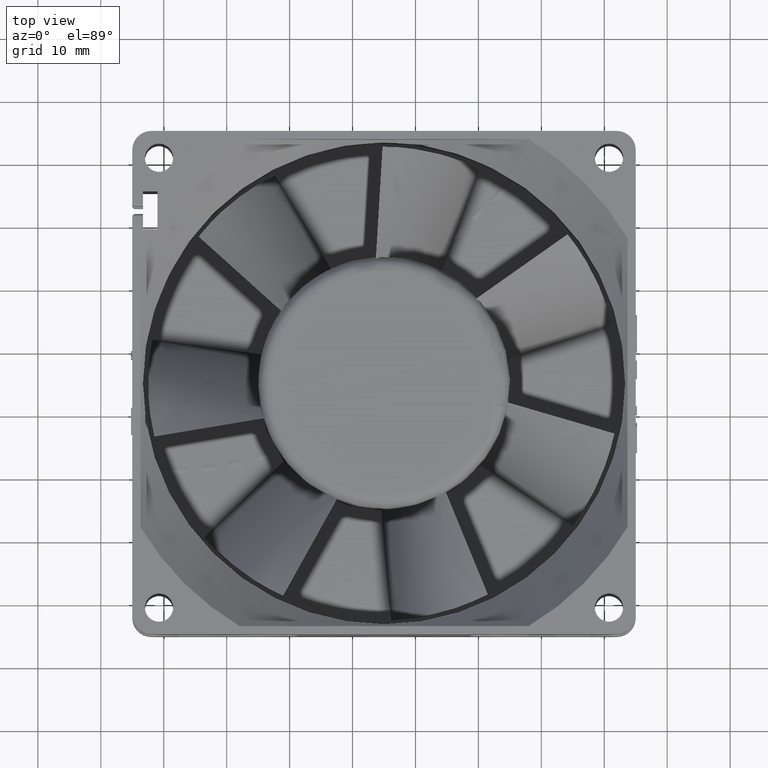
[diagram: clean part render]
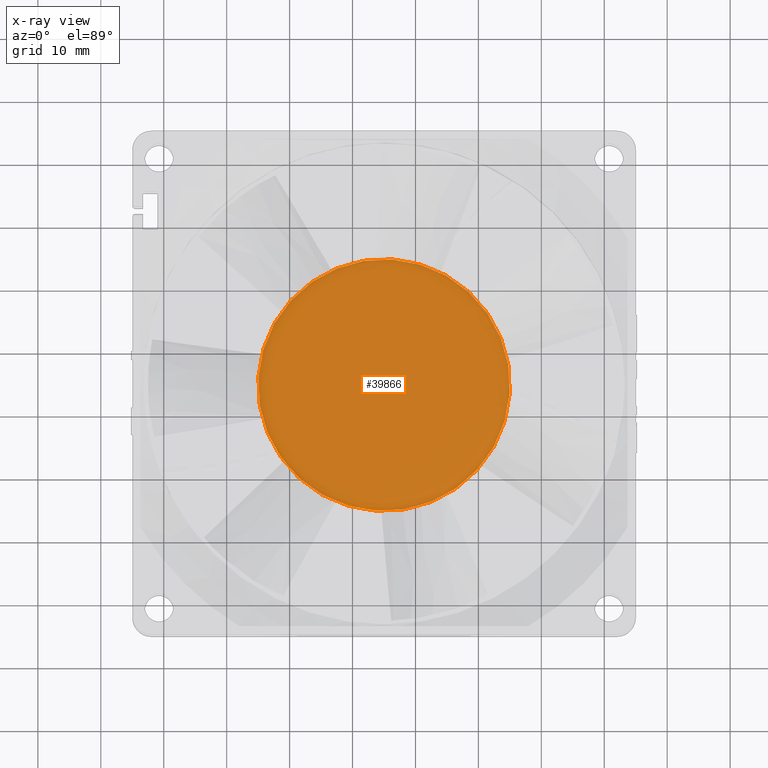
[diagram: x-ray — body ghosted, one internal face saturated and labeled with its STEP entity id]
A machine part, top view, then the same camera in x-ray: the body is ghosted and one INTERNAL B-rep face — a face not visible from any outside direction — is saturated and labeled: STEP entity #39866.
In plain terms, the highlighted planar face has unit normal (0, 0, 1).
Its self-contained STEP definition (entity closure, byte-faithful):
#39235=CARTESIAN_POINT('',(0.E0,0.E0,0.E0));
#39236=DIRECTION('',(0.E0,1.E0,0.E0));
#39237=DIRECTION('',(-2.847661684818E-1,0.E0,9.585970108905E-1));
#39238=AXIS2_PLACEMENT_3D('',#39235,#39236,#39237);
#39240=CARTESIAN_POINT('',(0.E0,0.E0,0.E0));
#39241=DIRECTION('',(0.E0,1.E0,0.E0));
#39242=DIRECTION('',(5.719125201512E-1,0.E0,8.203146160433E-1));
#39243=AXIS2_PLACEMENT_3D('',#39240,#39241,#39242);
#39259=CARTESIAN_POINT('',(0.E0,0.E0,0.E0));
#39260=DIRECTION('',(0.E0,-1.E0,0.E0));
#39261=DIRECTION('',(-8.711965486815E-1,0.E0,-4.909343882490E-1));
#39262=AXIS2_PLACEMENT_3D('',#39259,#39260,#39261);
#39290=CARTESIAN_POINT('',(0.E0,0.E0,0.E0));
#39291=DIRECTION('',(0.E0,-1.E0,0.E0));
#39292=DIRECTION('',(6.724851078260E-1,0.E0,-7.401106537216E-1));
#39293=AXIS2_PLACEMENT_3D('',#39290,#39291,#39292);
#39318=CARTESIAN_POINT('',(0.E0,0.E0,0.E0));
#39319=DIRECTION('',(0.E0,-1.E0,0.E0));
#39320=DIRECTION('',(-1.593542029582E-1,0.E0,-9.872214736317E-1));
#39321=AXIS2_PLACEMENT_3D('',#39318,#39319,#39320);
#39350=CARTESIAN_POINT('',(0.E0,0.E0,0.E0));
#39351=DIRECTION('',(0.E0,-1.E0,0.E0));
#39352=DIRECTION('',(-2.847661684818E-1,0.E0,9.585970108905E-1));
#39353=AXIS2_PLACEMENT_3D('',#39350,#39351,#39352);
#39408=CARTESIAN_POINT('',(0.E0,0.E0,0.E0));
#39409=DIRECTION('',(0.E0,-1.E0,0.E0));
#39410=DIRECTION('',(-9.270101240767E-1,0.E0,3.750363047217E-1));
#39411=AXIS2_PLACEMENT_3D('',#39408,#39409,#39410);
#39772=CARTESIAN_POINT('',(-5.695323369635E0,0.E0,1.917194021781E1));
#39773=CARTESIAN_POINT('',(1.143825040302E1,0.E0,1.640629232087E1));
#39774=VERTEX_POINT('',#39772);
#39775=VERTEX_POINT('',#39773);
#39782=CARTESIAN_POINT('',(1.995858832442E1,0.E0,1.286371678937E0));
#39784=VERTEX_POINT('',#39782);
#39786=CARTESIAN_POINT('',(1.344970215652E1,0.E0,-1.480221307443E1));
#39787=VERTEX_POINT('',#39786);
#39788=CARTESIAN_POINT('',(-3.187084059164E0,0.E0,-1.974442947263E1));
#39790=VERTEX_POINT('',#39788);
#39830=CARTESIAN_POINT('',(-1.742393097363E1,0.E0,-9.818687764980E0));
#39832=VERTEX_POINT('',#39830);
#39834=CARTESIAN_POINT('',(-1.854020248153E1,0.E0,7.500726094433E0));
#39836=VERTEX_POINT('',#39834);
#39845=CARTESIAN_POINT('',(0.E0,0.E0,0.E0));
#39846=DIRECTION('',(0.E0,1.E0,0.E0));
#39847=DIRECTION('',(1.E0,0.E0,0.E0));
#39848=AXIS2_PLACEMENT_3D('',#39845,#39846,#39847);
#39849=PLANE('',#39848);
#39851=ORIENTED_EDGE('',*,*,#39850,.F.);
#39853=ORIENTED_EDGE('',*,*,#39852,.T.);
#39855=ORIENTED_EDGE('',*,*,#39854,.T.);
#39857=ORIENTED_EDGE('',*,*,#39856,.F.);
#39859=ORIENTED_EDGE('',*,*,#39858,.F.);
#39861=ORIENTED_EDGE('',*,*,#39860,.F.);
#39863=ORIENTED_EDGE('',*,*,#39862,.F.);
#39864=EDGE_LOOP('',(#39851,#39853,#39855,#39857,#39859,#39861,#39863));
#39865=FACE_OUTER_BOUND('',#39864,.F.);
#39866=ADVANCED_FACE('',(#39865),#39849,.F.);
#39239=CIRCLE('',#39238,2.E1);
#39244=CIRCLE('',#39243,2.E1);
#39263=CIRCLE('',#39262,2.E1);
#39294=CIRCLE('',#39293,2.E1);
#39322=CIRCLE('',#39321,2.E1);
#39354=CIRCLE('',#39353,2.E1);
#39412=CIRCLE('',#39411,2.E1);
#39850=EDGE_CURVE('',#39774,#39836,#39354,.T.);
#39852=EDGE_CURVE('',#39774,#39775,#39239,.T.);
#39854=EDGE_CURVE('',#39775,#39784,#39244,.T.);
#39856=EDGE_CURVE('',#39787,#39784,#39294,.T.);
#39858=EDGE_CURVE('',#39790,#39787,#39322,.T.);
#39860=EDGE_CURVE('',#39832,#39790,#39263,.T.);
#39862=EDGE_CURVE('',#39836,#39832,#39412,.T.);